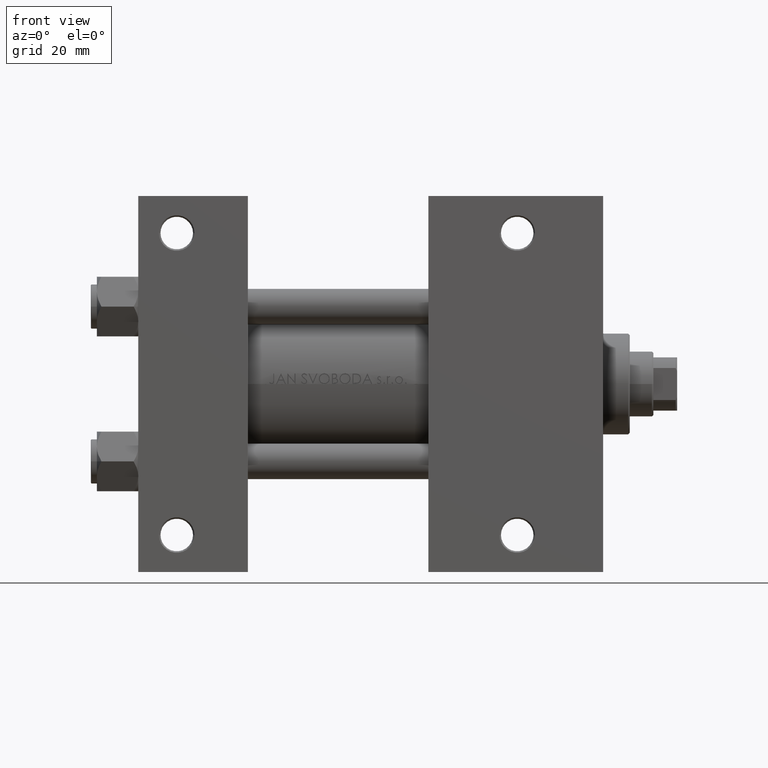
[diagram: clean part render]
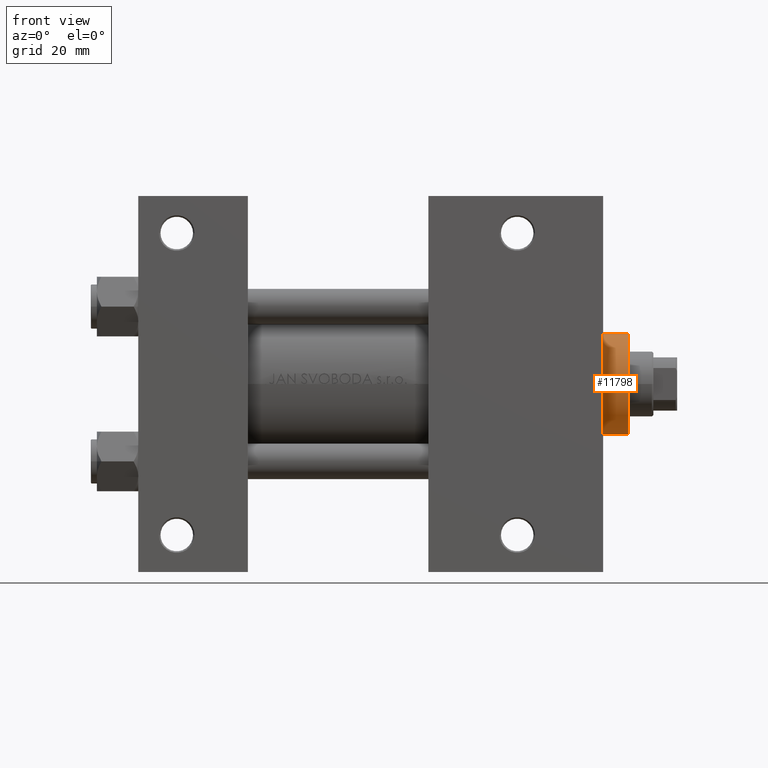
[diagram: same view with one face highlighted and labeled with its STEP entity id]
A machine part, front view. The second image highlights one B-rep face of the part: STEP entity #11798.
In plain terms, the highlighted cylindrical surface (partial cylindrical patch) has radius 17 mm, axis along (-1, -0, 0).
Its self-contained STEP definition (entity closure, byte-faithful):
#1502 = CARTESIAN_POINT ( 'NONE',  ( 17.00000000000000000, 2.081899558550500280E-15, 37.69999999999999574 ) ) ;
#1532 = VERTEX_POINT ( 'NONE', #40341 ) ;
#2553 = VERTEX_POINT ( 'NONE', #3411 ) ;
#3411 = CARTESIAN_POINT ( 'NONE',  ( -17.00000000000000000, 0.000000000000000000, 37.19999999999999574 ) ) ;
#4502 = LINE ( 'NONE', #1502, #19860 ) ;
#5381 = DIRECTION ( 'NONE',  ( 0.000000000000000000, 0.000000000000000000, -1.000000000000000000 ) ) ;
#5643 = CARTESIAN_POINT ( 'NONE',  ( 0.000000000000000000, 0.000000000000000000, 37.69999999999999574 ) ) ;
#7029 = LINE ( 'NONE', #41130, #27732 ) ;
#8751 = CARTESIAN_POINT ( 'NONE',  ( 0.000000000000000000, 0.000000000000000000, 28.69999999999999929 ) ) ;
#9629 = ORIENTED_EDGE ( 'NONE', *, *, #44496, .T. ) ;
#11798 = ADVANCED_FACE ( 'NONE', ( #13334 ), #28552, .T. ) ;
#12261 = EDGE_LOOP ( 'NONE', ( #22237, #18237, #9629, #23708 ) ) ;
#13334 = FACE_OUTER_BOUND ( 'NONE', #12261, .T. ) ;
#13588 = DIRECTION ( 'NONE',  ( -0.000000000000000000, -0.000000000000000000, -1.000000000000000000 ) ) ;
#17820 = CIRCLE ( 'NONE', #37704, 17.00000000000000000 ) ;
#18237 = ORIENTED_EDGE ( 'NONE', *, *, #28331, .T. ) ;
#18875 = VERTEX_POINT ( 'NONE', #37075 ) ;
#19860 = VECTOR ( 'NONE', #35868, 1000.000000000000000 ) ;
#21727 = EDGE_CURVE ( 'NONE', #40876, #18875, #4502, .T. ) ;
#22237 = ORIENTED_EDGE ( 'NONE', *, *, #21727, .F. ) ;
#23708 = ORIENTED_EDGE ( 'NONE', *, *, #31427, .T. ) ;
#23955 = DIRECTION ( 'NONE',  ( 0.000000000000000000, 0.000000000000000000, 1.000000000000000000 ) ) ;
#26642 = CARTESIAN_POINT ( 'NONE',  ( 17.00000000000000000, 2.081899558550500280E-15, 37.19999999999999574 ) ) ;
#27732 = VECTOR ( 'NONE', #37414, 1000.000000000000000 ) ;
#28331 = EDGE_CURVE ( 'NONE', #40876, #2553, #36800, .T. ) ;
#28552 = CYLINDRICAL_SURFACE ( 'NONE', #33518, 17.00000000000000000 ) ;
#29042 = DIRECTION ( 'NONE',  ( -1.000000000000000000, 0.000000000000000000, 0.000000000000000000 ) ) ;
#31427 = EDGE_CURVE ( 'NONE', #1532, #18875, #17820, .T. ) ;
#33518 = AXIS2_PLACEMENT_3D ( 'NONE', #5643, #13588, #29042 ) ;
#35868 = DIRECTION ( 'NONE',  ( -0.000000000000000000, -0.000000000000000000, -1.000000000000000000 ) ) ;
#36800 = CIRCLE ( 'NONE', #40742, 17.00000000000000000 ) ;
#37075 = CARTESIAN_POINT ( 'NONE',  ( 17.00000000000000000, 2.081899558550500280E-15, 28.69999999999999929 ) ) ;
#37414 = DIRECTION ( 'NONE',  ( -0.000000000000000000, -0.000000000000000000, -1.000000000000000000 ) ) ;
#37704 = AXIS2_PLACEMENT_3D ( 'NONE', #8751, #23955, #39126 ) ;
#39126 = DIRECTION ( 'NONE',  ( 1.000000000000000000, 0.000000000000000000, 0.000000000000000000 ) ) ;
#40341 = CARTESIAN_POINT ( 'NONE',  ( -17.00000000000000000, 0.000000000000000000, 28.69999999999999929 ) ) ;
#40742 = AXIS2_PLACEMENT_3D ( 'NONE', #47467, #5381, #43710 ) ;
#40876 = VERTEX_POINT ( 'NONE', #26642 ) ;
#41130 = CARTESIAN_POINT ( 'NONE',  ( -17.00000000000000000, 0.000000000000000000, 37.69999999999999574 ) ) ;
#43710 = DIRECTION ( 'NONE',  ( 1.000000000000000000, 0.000000000000000000, 0.000000000000000000 ) ) ;
#44496 = EDGE_CURVE ( 'NONE', #2553, #1532, #7029, .T. ) ;
#47467 = CARTESIAN_POINT ( 'NONE',  ( 0.000000000000000000, 0.000000000000000000, 37.19999999999999574 ) ) ;